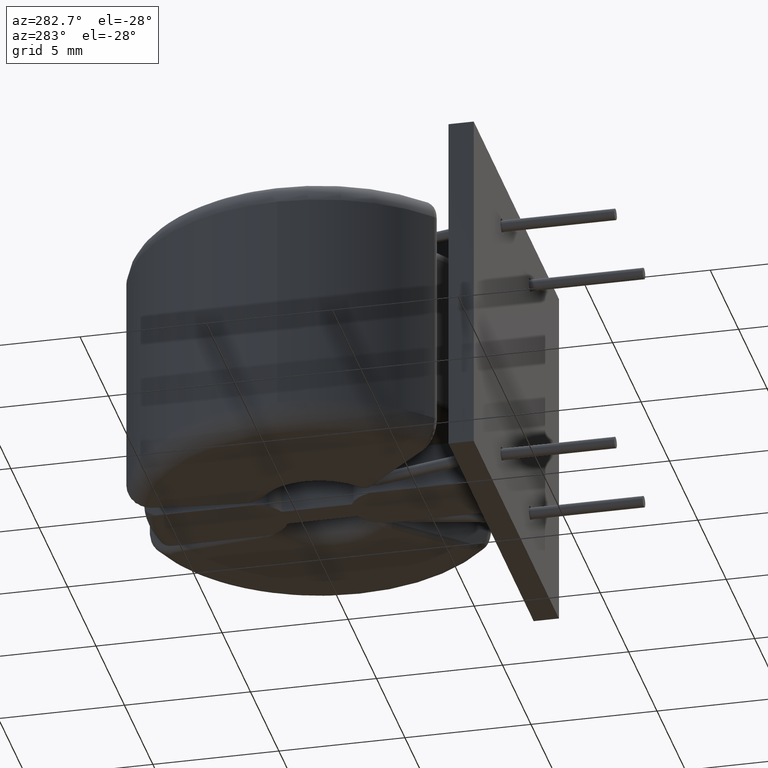
[diagram: clean part render]
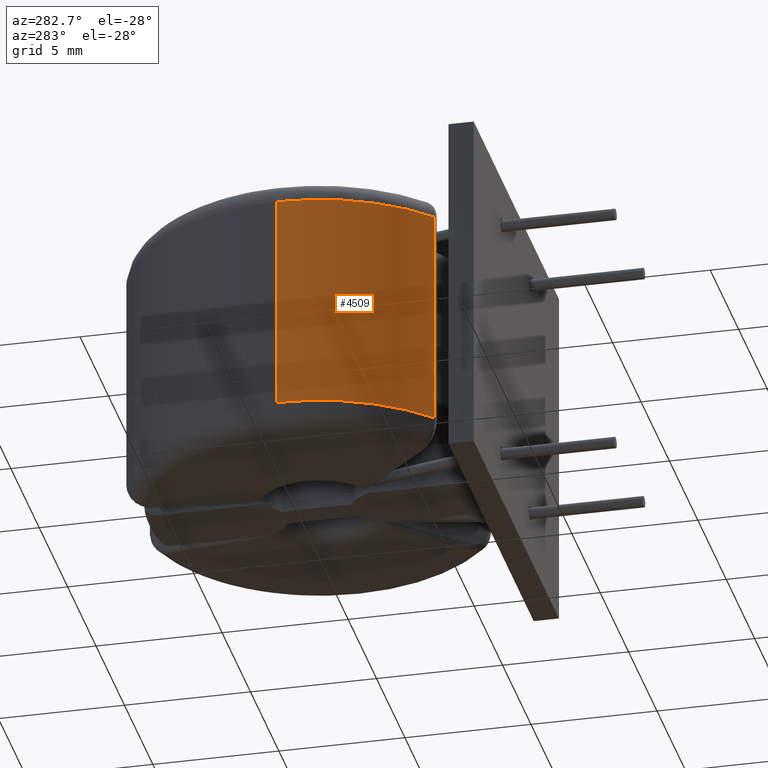
[diagram: same view with one face highlighted and labeled with its STEP entity id]
A machine part, auxiliary view. The second image highlights one B-rep face of the part: STEP entity #4509.
In plain terms, the highlighted cylindrical surface (partial cylindrical patch) has radius 7.5 mm, axis along (-0, -0, -1).
Its self-contained STEP definition (entity closure, byte-faithful):
#174 = CARTESIAN_POINT ( 'NONE',  ( -4.921434729456273693, -5.659459356131264052, -4.399999999999999467 ) ) ;
#529 = DIRECTION ( 'NONE',  ( -1.000000000000000000, 0.0000000000000000000, 0.0000000000000000000 ) ) ;
#715 = CARTESIAN_POINT ( 'NONE',  ( -4.921434729456272805, -5.659459356131264940, 5.400000000000000355 ) ) ;
#1049 = CARTESIAN_POINT ( 'NONE',  ( 0.0000000000000000000, 0.0000000000000000000, 5.400000000000000355 ) ) ;
#1390 = DIRECTION ( 'NONE',  ( 0.0000000000000000000, 0.0000000000000000000, 1.000000000000000000 ) ) ;
#1398 = EDGE_LOOP ( 'NONE', ( #11042, #9155, #4745, #6191 ) ) ;
#1594 = DIRECTION ( 'NONE',  ( -0.0000000000000000000, -0.0000000000000000000, -1.000000000000000000 ) ) ;
#1849 = CARTESIAN_POINT ( 'NONE',  ( -4.921434729456273693, -5.659459356131264052, 4.400000000000000355 ) ) ;
#2123 = EDGE_CURVE ( 'NONE', #6760, #8862, #4932, .T. ) ;
#2636 = DIRECTION ( 'NONE',  ( 1.000000000000000000, 1.776356839400250465E-15, 0.0000000000000000000 ) ) ;
#2683 = FACE_OUTER_BOUND ( 'NONE', #1398, .T. ) ;
#3298 = CYLINDRICAL_SURFACE ( 'NONE', #11014, 7.500000000000003553 ) ;
#3473 = DIRECTION ( 'NONE',  ( 0.0000000000000000000, 0.0000000000000000000, 1.000000000000000000 ) ) ;
#4509 = ADVANCED_FACE ( 'NONE', ( #2683 ), #3298, .T. ) ;
#4745 = ORIENTED_EDGE ( 'NONE', *, *, #11412, .T. ) ;
#4921 = DIRECTION ( 'NONE',  ( -0.0000000000000000000, -0.0000000000000000000, -1.000000000000000000 ) ) ;
#4932 = CIRCLE ( 'NONE', #9587, 7.500000000000003553 ) ;
#5033 = VERTEX_POINT ( 'NONE', #174 ) ;
#5764 = EDGE_CURVE ( 'NONE', #8862, #10955, #9686, .T. ) ;
#6191 = ORIENTED_EDGE ( 'NONE', *, *, #10950, .T. ) ;
#6579 = CARTESIAN_POINT ( 'NONE',  ( 0.0000000000000000000, 0.0000000000000000000, 4.400000000000000355 ) ) ;
#6760 = VERTEX_POINT ( 'NONE', #1849 ) ;
#8061 = LINE ( 'NONE', #715, #10188 ) ;
#8369 = DIRECTION ( 'NONE',  ( -0.0000000000000000000, -0.0000000000000000000, -1.000000000000000000 ) ) ;
#8776 = VECTOR ( 'NONE', #4921, 1000.000000000000000 ) ;
#8862 = VERTEX_POINT ( 'NONE', #10380 ) ;
#8866 = CIRCLE ( 'NONE', #12371, 7.500000000000003553 ) ;
#9093 = CARTESIAN_POINT ( 'NONE',  ( 0.0000000000000000000, 0.0000000000000000000, -4.399999999999999467 ) ) ;
#9155 = ORIENTED_EDGE ( 'NONE', *, *, #5764, .T. ) ;
#9587 = AXIS2_PLACEMENT_3D ( 'NONE', #6579, #1594, #2636 ) ;
#9686 = LINE ( 'NONE', #9766, #8776 ) ;
#9766 = CARTESIAN_POINT ( 'NONE',  ( -7.500000000000003553, 0.0000000000000000000, 5.400000000000000355 ) ) ;
#10188 = VECTOR ( 'NONE', #3473, 1000.000000000000000 ) ;
#10380 = CARTESIAN_POINT ( 'NONE',  ( -7.500000000000003553, 0.0000000000000000000, 4.400000000000000355 ) ) ;
#10405 = CARTESIAN_POINT ( 'NONE',  ( -7.500000000000003553, 0.0000000000000000000, -4.399999999999999467 ) ) ;
#10950 = EDGE_CURVE ( 'NONE', #5033, #6760, #8061, .T. ) ;
#10954 = DIRECTION ( 'NONE',  ( 1.000000000000000000, 0.0000000000000000000, 0.0000000000000000000 ) ) ;
#10955 = VERTEX_POINT ( 'NONE', #10405 ) ;
#11014 = AXIS2_PLACEMENT_3D ( 'NONE', #1049, #8369, #529 ) ;
#11042 = ORIENTED_EDGE ( 'NONE', *, *, #2123, .T. ) ;
#11412 = EDGE_CURVE ( 'NONE', #10955, #5033, #8866, .T. ) ;
#12371 = AXIS2_PLACEMENT_3D ( 'NONE', #9093, #1390, #10954 ) ;